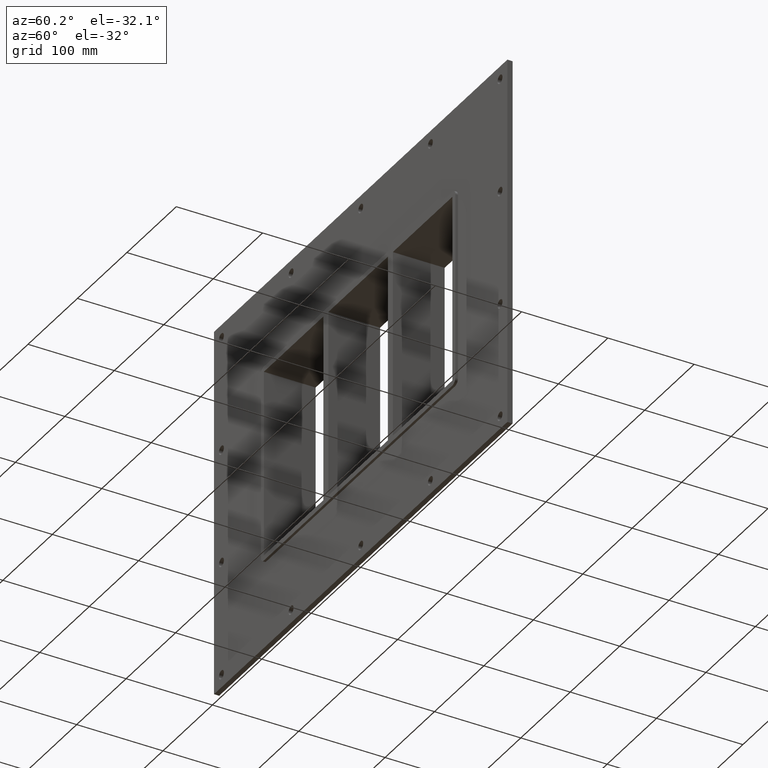
[diagram: clean part render]
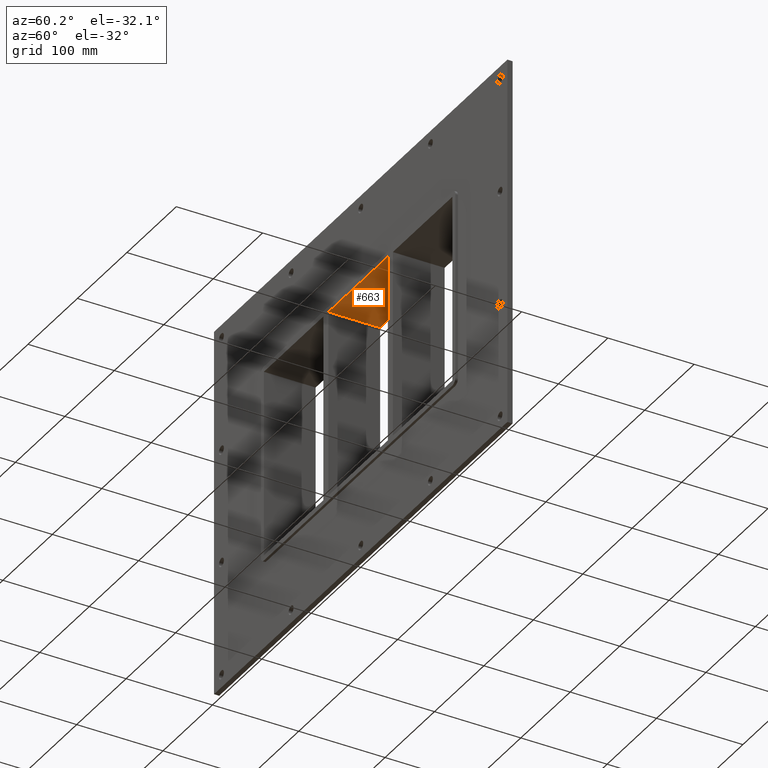
[diagram: same view with one face highlighted and labeled with its STEP entity id]
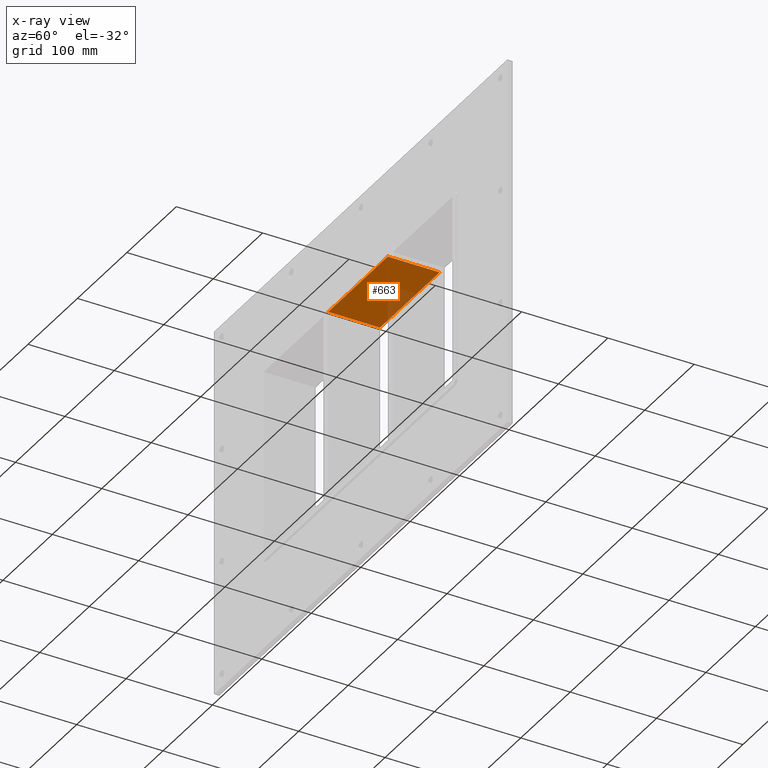
[diagram: x-ray of the same camera — body ghosted, the highlighted face saturated]
A machine part, auxiliary view. The second image highlights one B-rep face of the part: STEP entity #663.
The next image is the same camera in x-ray: the body ghosted, the highlighted face saturated — about 13% of this face is hidden behind the body in this view.
In plain terms, the highlighted planar face has unit normal (0, 0, 1).
Its self-contained STEP definition (entity closure, byte-faithful):
#467=CARTESIAN_POINT('',(60.249999999998622,-3.0,109.00000000000003));
#468=VERTEX_POINT('',#467);
#475=CARTESIAN_POINT('',(60.249999999998622,57.0,109.00000000000003));
#476=VERTEX_POINT('',#475);
#477=CARTESIAN_POINT('',(60.249999999998607,57.000000000000007,109.00000000000003));
#478=DIRECTION('',(0.0,-1.0,0.0));
#479=VECTOR('',#478,60.000000000000007);
#480=LINE('',#477,#479);
#481=EDGE_CURVE('',#476,#468,#480,.T.);
#633=CARTESIAN_POINT('',(-190.75000000000003,0.0,109.00000000000003));
#634=DIRECTION('',(0.0,0.0,1.0));
#635=DIRECTION('',(1.0,0.0,0.0));
#636=AXIS2_PLACEMENT_3D('',#633,#634,#635);
#637=PLANE('',#636);
#638=ORIENTED_EDGE('',*,*,#481,.T.);
#639=CARTESIAN_POINT('',(-60.249999999996362,-3.0,109.00000000000003));
#640=VERTEX_POINT('',#639);
#641=CARTESIAN_POINT('',(-60.249999999996362,-3.0,109.00000000000003));
#642=DIRECTION('',(1.0,0.0,0.0));
#643=VECTOR('',#642,120.49999999999498);
#644=LINE('',#641,#643);
#645=EDGE_CURVE('',#640,#468,#644,.T.);
#646=ORIENTED_EDGE('',*,*,#645,.F.);
#647=CARTESIAN_POINT('',(-60.249999999996362,57.0,109.00000000000003));
#648=VERTEX_POINT('',#647);
#649=CARTESIAN_POINT('',(-60.249999999996362,-3.0,109.00000000000003));
#650=DIRECTION('',(0.0,1.0,0.0));
#651=VECTOR('',#650,60.000000000000007);
#652=LINE('',#649,#651);
#653=EDGE_CURVE('',#640,#648,#652,.T.);
#654=ORIENTED_EDGE('',*,*,#653,.T.);
#655=CARTESIAN_POINT('',(60.249999999998622,57.0,109.00000000000003));
#656=DIRECTION('',(-1.0,0.0,0.0));
#657=VECTOR('',#656,120.49999999999498);
#658=LINE('',#655,#657);
#659=EDGE_CURVE('',#476,#648,#658,.T.);
#660=ORIENTED_EDGE('',*,*,#659,.F.);
#661=EDGE_LOOP('',(#638,#646,#654,#660));
#662=FACE_OUTER_BOUND('',#661,.T.);
#663=ADVANCED_FACE('',(#662),#637,.F.);